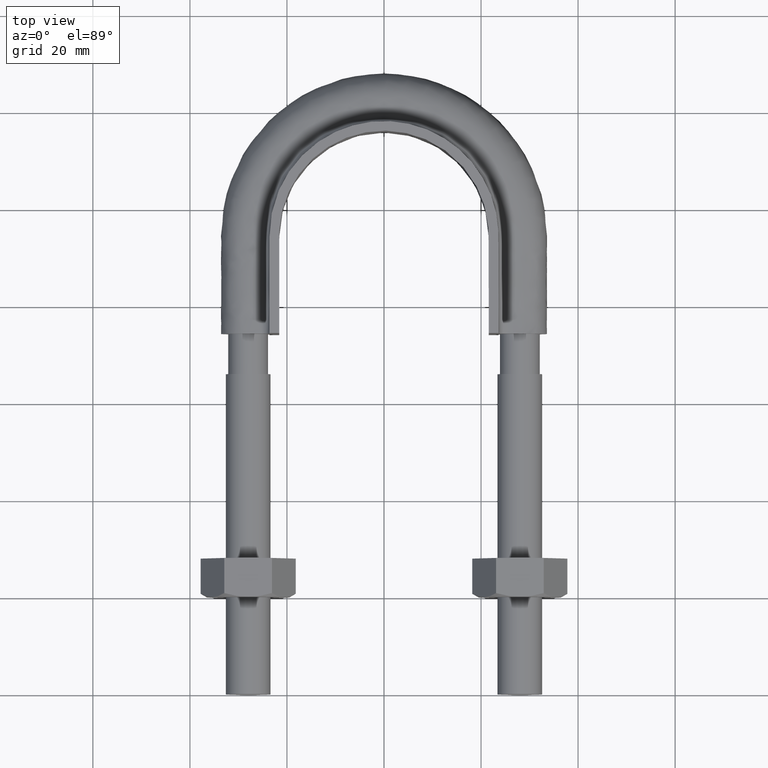
[diagram: clean part render]
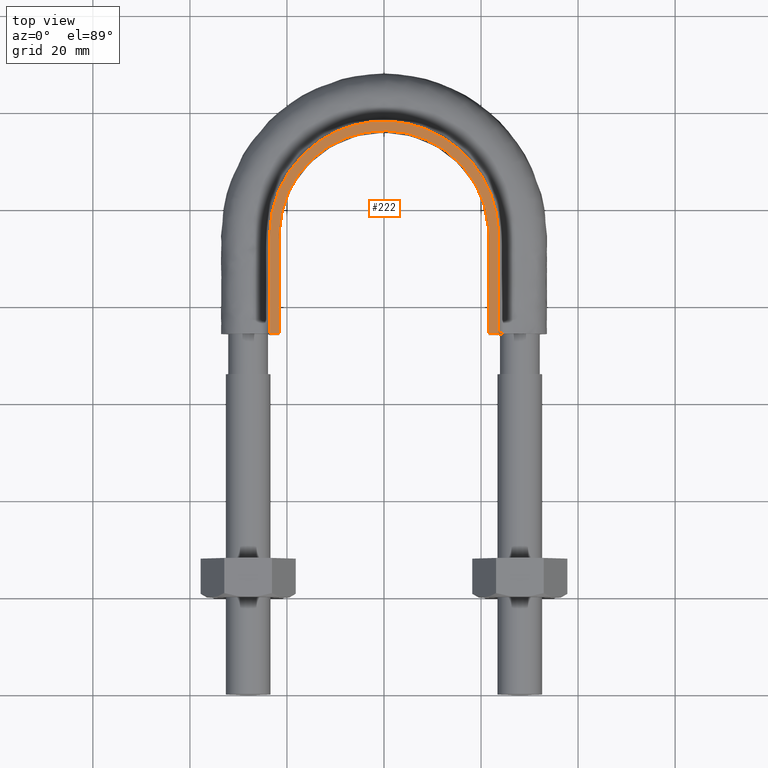
[diagram: same view with one face highlighted and labeled with its STEP entity id]
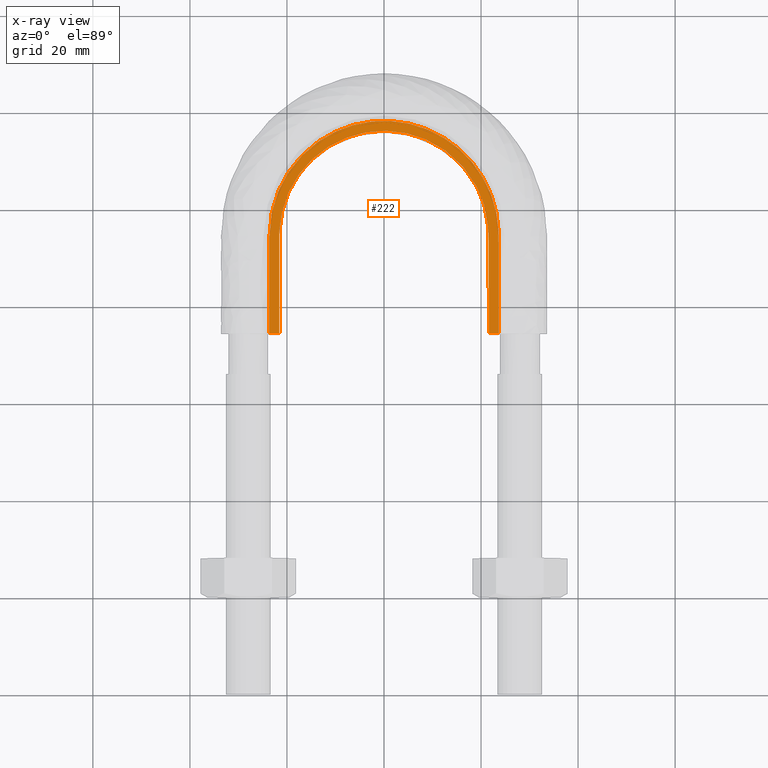
[diagram: x-ray of the same camera — body ghosted, the highlighted face saturated]
A machine part, top view. The second image highlights one B-rep face of the part: STEP entity #222.
The next image is the same camera in x-ray: the body ghosted, the highlighted face saturated — about 0% of this face is hidden behind the body in this view.
In plain terms, the highlighted planar face has unit normal (0, 0, 1).
Its self-contained STEP definition (entity closure, byte-faithful):
#222 = ADVANCED_FACE( '', ( #304 ), #305, .T. );
#304 = FACE_OUTER_BOUND( '', #477, .T. );
#305 = PLANE( '', #478 );
#477 = EDGE_LOOP( '', ( #1503, #1504, #1505, #1506 ) );
#478 = AXIS2_PLACEMENT_3D( '', #1507, #1508, #1509 );
#1503 = ORIENTED_EDGE( '', *, *, #2005, .T. );
#1504 = ORIENTED_EDGE( '', *, *, #2014, .F. );
#1505 = ORIENTED_EDGE( '', *, *, #2009, .T. );
#1506 = ORIENTED_EDGE( '', *, *, #2015, .T. );
#1507 = CARTESIAN_POINT( '', ( 40.0000000000000, 134.300000000000, 12.5000000000000 ) );
#1508 = DIRECTION( '', ( 0.000000000000000, 0.000000000000000, 1.00000000000000 ) );
#1509 = DIRECTION( '', ( 1.22460635382238E-016, 1.00000000000000, 0.000000000000000 ) );
#2005 = EDGE_CURVE( '', #2160, #2157, #2161, .T. );
#2009 = EDGE_CURVE( '', #2167, #2168, #2169, .T. );
#2014 = EDGE_CURVE( '', #2167, #2157, #2176, .T. );
#2015 = EDGE_CURVE( '', #2168, #2160, #2177, .F. );
#2157 = VERTEX_POINT( '', #2416 );
#2160 = VERTEX_POINT( '', #2420 );
#2161 = LINE( '', #2421, #2422 );
#2167 = VERTEX_POINT( '', #2468 );
#2168 = VERTEX_POINT( '', #2469 );
#2169 = LINE( '', #2470, #2471 );
#2176 = B_SPLINE_CURVE_WITH_KNOTS( '', 3, ( #2526, #2527, #2528, #2529, #2530, #2531, #2532, #2533, #2534, #2535, #2536, #2537, #2538, #2539, #2540, #2541, #2542, #2543, #2544, #2545, #2546, #2547, #2548, #2549, #2550, #2551, #2552, #2553, #2554, #2555, #2556, #2557, #2558, #2559, #2560, #2561, #2562, #2563, #2564, #2565, #2566, #2567, #2568, #2569, #2570, #2571, #2572, #2573, #2574, #2575, #2576, #2577, #2578, #2579, #2580, #2581, #2582, #2583, #2584, #2585, #2586, #2587, #2588, #2589, #2590, #2591, #2592, #2593, #2594, #2595 ), .UNSPECIFIED., .F., .F., ( 4, 1, 1, 1, 2, 2, 2, 2, 2, 2, 2, 2, 2, 2, 2, 2, 2, 2, 2, 2, 2, 2, 2, 2, 2, 2, 2, 2, 2, 2, 2, 2, 2, 2, 1, 1, 1, 4 ), ( 0.000000000000000, 0.0135231659011119, 0.0169039573763898, 0.0185943531140288, 0.0194395509828483, 0.0202847488516678, 0.0219751445893068, 0.0236655403269458, 0.0270463318022238, 0.0287367275398628, 0.0304271232775017, 0.0338079147527797, 0.0371887062280576, 0.0405694977033356, 0.0439502891786135, 0.0456406849162525, 0.0473310806538915, 0.0507118721291694, 0.0524022678668084, 0.0540926636044474, 0.0574734550797254, 0.0591638508173644, 0.0608542465550034, 0.0642350380302813, 0.0659254337679203, 0.0676158295055593, 0.0709966209808372, 0.0726870167184762, 0.0743774124561152, 0.0777582039313931, 0.0811389954066710, 0.0845197868819489, 0.0879005783572269, 0.0887457762260464, 0.0895909740948659, 0.0912813698325048, 0.0946621613077826, 0.108185327208894 ), .UNSPECIFIED. );
#2177 = B_SPLINE_CURVE_WITH_KNOTS( '', 3, ( #2596, #2597, #2598, #2599, #2600, #2601, #2602, #2603, #2604, #2605, #2606, #2607, #2608, #2609, #2610, #2611, #2612 ), .UNSPECIFIED., .F., .F., ( 4, 3, 1, 1, 1, 1, 1, 1, 1, 3, 4 ), ( 0.129870129870129, 1.00000000000000, 1.50000000000000, 2.00000000000000, 3.00000000000000, 4.00000000000000, 5.00000000000000, 6.00000000000000, 6.50000000000000, 7.00000000000000, 7.87012987012987 ), .UNSPECIFIED. );
#2416 = CARTESIAN_POINT( '', ( -21.6000000000000, 74.3000000000000, 12.5000000000000 ) );
#2420 = CARTESIAN_POINT( '', ( -23.6000000000000, 74.3000000000000, 12.5000000000000 ) );
#2421 = CARTESIAN_POINT( '', ( -40.0000000000000, 74.3000000000000, 12.5000000000000 ) );
#2422 = VECTOR( '', #3071, 1000.00000000000 );
#2468 = CARTESIAN_POINT( '', ( 21.6000000000000, 74.3000000000000, 12.5000000000000 ) );
#2469 = CARTESIAN_POINT( '', ( 23.6000000000000, 74.3000000000000, 12.5000000000000 ) );
#2470 = CARTESIAN_POINT( '', ( -40.0000000000000, 74.3000000000000, 12.5000000000000 ) );
#2471 = VECTOR( '', #3073, 1000.00000000000 );
#2526 = CARTESIAN_POINT( '', ( 21.6000000000000, 74.3000000000000, 12.5000000000000 ) );
#2527 = CARTESIAN_POINT( '', ( 21.6000000000000, 78.8078030796335, 12.5000000000000 ) );
#2528 = CARTESIAN_POINT( '', ( 21.6000000000000, 84.4425569291754, 12.5000000000000 ) );
#2529 = CARTESIAN_POINT( '', ( 21.6000000000000, 90.6407861636716, 12.5000000000000 ) );
#2530 = CARTESIAN_POINT( '', ( 21.6000000000000, 92.6129500110112, 12.5000000000000 ) );
#2531 = CARTESIAN_POINT( '', ( 21.6000000000000, 93.4581630884425, 12.5000000000000 ) );
#2532 = CARTESIAN_POINT( '', ( 21.6000000000000, 94.0216384733967, 12.5000000000000 ) );
#2533 = CARTESIAN_POINT( '', ( 21.6016868866855, 94.3033862855927, 12.5000000000000 ) );
#2534 = CARTESIAN_POINT( '', ( 21.5941473148947, 95.1485541327496, 12.5000000000000 ) );
#2535 = CARTESIAN_POINT( '', ( 21.5662932291956, 95.7118624196277, 12.5000000000000 ) );
#2536 = CARTESIAN_POINT( '', ( 21.4660466240226, 96.8382118050554, 12.5000000000000 ) );
#2537 = CARTESIAN_POINT( '', ( 21.3934997931487, 97.4007781127302, 12.5000000000000 ) );
#2538 = CARTESIAN_POINT( '', ( 21.1137244660228, 99.0644770260068, 12.5000000000000 ) );
#2539 = CARTESIAN_POINT( '', ( 20.8443432397078, 100.149868135551, 12.5000000000000 ) );
#2540 = CARTESIAN_POINT( '', ( 20.3169229678080, 101.742614185705, 12.5000000000000 ) );
#2541 = CARTESIAN_POINT( '', ( 20.1204432842000, 102.267606526457, 12.5000000000000 ) );
#2542 = CARTESIAN_POINT( '', ( 19.6849320818904, 103.305399662790, 12.5000000000000 ) );
#2543 = CARTESIAN_POINT( '', ( 19.4446614349743, 103.820429757400, 12.5000000000000 ) );
#2544 = CARTESIAN_POINT( '', ( 18.6684950229906, 105.324438325089, 12.5000000000000 ) );
#2545 = CARTESIAN_POINT( '', ( 18.0769270085057, 106.274451372194, 12.5000000000000 ) );
#2546 = CARTESIAN_POINT( '', ( 16.7529195258009, 108.074398914274, 12.5000000000000 ) );
#2547 = CARTESIAN_POINT( '', ( 16.0200911873579, 108.925287386339, 12.5000000000000 ) );
#2548 = CARTESIAN_POINT( '', ( 14.4128259168033, 110.521474735898, 12.5000000000000 ) );
#2549 = CARTESIAN_POINT( '', ( 13.5580348793817, 111.247479280974, 12.5000000000000 ) );
#2550 = CARTESIAN_POINT( '', ( 11.7487973458944, 112.559060308820, 12.5000000000000 ) );
#2551 = CARTESIAN_POINT( '', ( 10.7940352803573, 113.144192111388, 12.5000000000000 ) );
#2552 = CARTESIAN_POINT( '', ( 9.28291683850486, 113.910602840948, 12.5000000000000 ) );
#2553 = CARTESIAN_POINT( '', ( 8.76688933898164, 114.146981426296, 12.5000000000000 ) );
#2554 = CARTESIAN_POINT( '', ( 7.72704803755931, 114.575165336050, 12.5000000000000 ) );
#2555 = CARTESIAN_POINT( '', ( 7.20104342927318, 114.768127044196, 12.5000000000000 ) );
#2556 = CARTESIAN_POINT( '', ( 5.60522003708373, 115.285157603209, 12.5000000000000 ) );
#2557 = CARTESIAN_POINT( '', ( 4.51773658274787, 115.547875131347, 12.5000000000000 ) );
#2558 = CARTESIAN_POINT( '', ( 2.85023521541969, 115.815960282512, 12.5000000000000 ) );
#2559 = CARTESIAN_POINT( '', ( 2.28591125961179, 115.884292763219, 12.5000000000000 ) );
#2560 = CARTESIAN_POINT( '', ( 1.16191586217194, 115.975553496175, 12.5000000000000 ) );
#2561 = CARTESIAN_POINT( '', ( 0.601211685233129, 115.998851142548, 12.5000000000000 ) );
#2562 = CARTESIAN_POINT( '', ( -1.07704505152026, 116.002173598778, 12.5000000000000 ) );
#2563 = CARTESIAN_POINT( '', ( -2.19076731773876, 115.916068192621, 12.5000000000000 ) );
#2564 = CARTESIAN_POINT( '', ( -3.85383561017255, 115.657161376192, 12.5000000000000 ) );
#2565 = CARTESIAN_POINT( '', ( -4.40765029596285, 115.548936234831, 12.5000000000000 ) );
#2566 = CARTESIAN_POINT( '', ( -5.50969437777181, 115.288555389738, 12.5000000000000 ) );
#2567 = CARTESIAN_POINT( '', ( -6.05215769470161, 115.137823050636, 12.5000000000000 ) );
#2568 = CARTESIAN_POINT( '', ( -7.65458034955577, 114.625701667126, 12.5000000000000 ) );
#2569 = CARTESIAN_POINT( '', ( -8.68976887568342, 114.204859840919, 12.5000000000000 ) );
#2570 = CARTESIAN_POINT( '', ( -10.1920361507629, 113.452354089367, 12.5000000000000 ) );
#2571 = CARTESIAN_POINT( '', ( -10.6843068104454, 113.181153631431, 12.5000000000000 ) );
#2572 = CARTESIAN_POINT( '', ( -11.6512116265084, 112.596423090227, 12.5000000000000 ) );
#2573 = CARTESIAN_POINT( '', ( -12.1245518901083, 112.283560658135, 12.5000000000000 ) );
#2574 = CARTESIAN_POINT( '', ( -13.4940506802498, 111.299382950520, 12.5000000000000 ) );
#2575 = CARTESIAN_POINT( '', ( -14.3483977984834, 110.577983135197, 12.5000000000000 ) );
#2576 = CARTESIAN_POINT( '', ( -15.5445244245930, 109.400837527132, 12.5000000000000 ) );
#2577 = CARTESIAN_POINT( '', ( -15.9289126706020, 108.992516410573, 12.5000000000000 ) );
#2578 = CARTESIAN_POINT( '', ( -16.6684043052147, 108.143279340330, 12.5000000000000 ) );
#2579 = CARTESIAN_POINT( '', ( -17.0248134305994, 107.700429367734, 12.5000000000000 ) );
#2580 = CARTESIAN_POINT( '', ( -18.0326739447613, 106.342314908164, 12.5000000000000 ) );
#2581 = CARTESIAN_POINT( '', ( -18.6267452534931, 105.394304591917, 12.5000000000000 ) );
#2582 = CARTESIAN_POINT( '', ( -19.6599214235238, 103.413468438516, 12.5000000000000 ) );
#2583 = CARTESIAN_POINT( '', ( -20.1004689641877, 102.379142876716, 12.5000000000000 ) );
#2584 = CARTESIAN_POINT( '', ( -20.8221292198643, 100.232648644471, 12.5000000000000 ) );
#2585 = CARTESIAN_POINT( '', ( -21.0954136423922, 99.1448754351828, 12.5000000000000 ) );
#2586 = CARTESIAN_POINT( '', ( -21.4751329492846, 96.9416443697405, 12.5000000000000 ) );
#2587 = CARTESIAN_POINT( '', ( -21.5818004860624, 95.8262251166300, 12.5000000000000 ) );
#2588 = CARTESIAN_POINT( '', ( -21.6019152180314, 94.4131649802125, 12.5000000000000 ) );
#2589 = CARTESIAN_POINT( '', ( -21.6000000000000, 94.1295676581122, 12.5000000000000 ) );
#2590 = CARTESIAN_POINT( '', ( -21.6000000000000, 93.5630085821661, 12.5000000000000 ) );
#2591 = CARTESIAN_POINT( '', ( -21.6000000000000, 92.7131699682471, 12.5000000000000 ) );
#2592 = CARTESIAN_POINT( '', ( -21.6000000000000, 90.7302132024358, 12.5000000000000 ) );
#2593 = CARTESIAN_POINT( '', ( -21.6000000000000, 84.4980633670292, 12.5000000000000 ) );
#2594 = CARTESIAN_POINT( '', ( -21.6000000000000, 78.8324726075685, 12.5000000000000 ) );
#2595 = CARTESIAN_POINT( '', ( -21.6000000000000, 74.3000000000000, 12.5000000000000 ) );
#2596 = CARTESIAN_POINT( '', ( -23.6000000000000, 74.3000000000000, 12.5000000000000 ) );
#2597 = CARTESIAN_POINT( '', ( -23.6000000000000, 81.0000000000000, 12.5000000000000 ) );
#2598 = CARTESIAN_POINT( '', ( -23.6000000000000, 87.7000000000000, 12.5000000000000 ) );
#2599 = CARTESIAN_POINT( '', ( -23.6000000000000, 94.4000000000000, 12.5000000000000 ) );
#2600 = CARTESIAN_POINT( '', ( -23.6000000000000, 96.4494146737192, 12.5000000000000 ) );
#2601 = CARTESIAN_POINT( '', ( -23.0467901016320, 100.579523767700, 12.5000000000000 ) );
#2602 = CARTESIAN_POINT( '', ( -19.8875260981763, 108.256444233582, 12.5000000000000 ) );
#2603 = CARTESIAN_POINT( '', ( -12.3513075479443, 115.794383059266, 12.5000000000000 ) );
#2604 = CARTESIAN_POINT( '', ( 2.02232568980147E-014, 119.102808470367, 12.5000000000000 ) );
#2605 = CARTESIAN_POINT( '', ( 12.3513075479443, 115.794383059266, 12.5000000000000 ) );
#2606 = CARTESIAN_POINT( '', ( 19.8875260981763, 108.256444233582, 12.5000000000000 ) );
#2607 = CARTESIAN_POINT( '', ( 23.0467901016320, 100.579523767700, 12.5000000000000 ) );
#2608 = CARTESIAN_POINT( '', ( 23.6000000000000, 96.4494146737192, 12.5000000000000 ) );
#2609 = CARTESIAN_POINT( '', ( 23.6000000000000, 94.4000000000000, 12.5000000000000 ) );
#2610 = CARTESIAN_POINT( '', ( 23.6000000000000, 87.7000000000000, 12.5000000000000 ) );
#2611 = CARTESIAN_POINT( '', ( 23.6000000000000, 81.0000000000000, 12.5000000000000 ) );
#2612 = CARTESIAN_POINT( '', ( 23.6000000000000, 74.3000000000000, 12.5000000000000 ) );
#3071 = DIRECTION( '', ( 1.00000000000000, -1.22460635382238E-016, 0.000000000000000 ) );
#3073 = DIRECTION( '', ( 1.00000000000000, -1.22460635382238E-016, 0.000000000000000 ) );